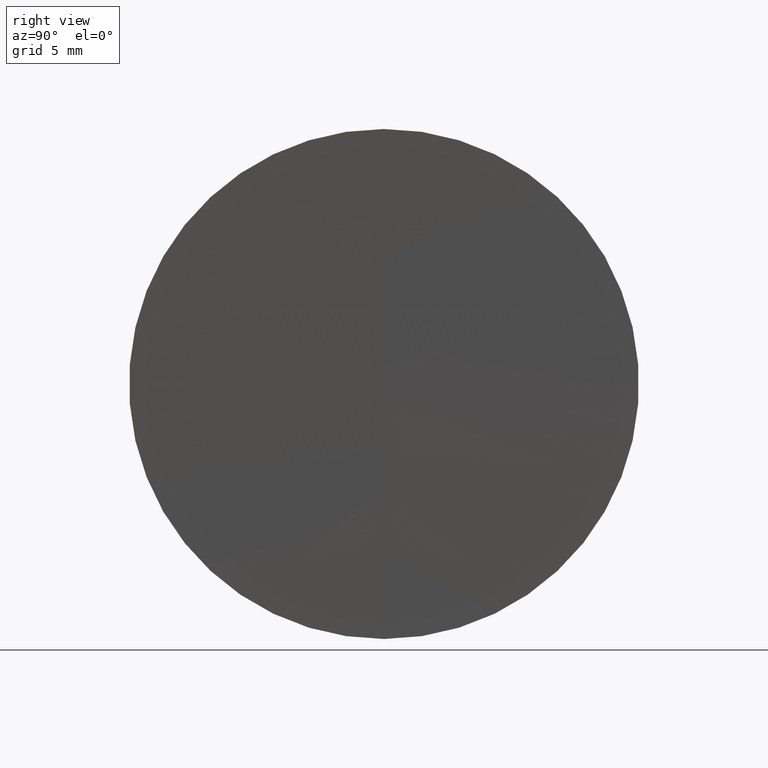
[diagram: clean part render]
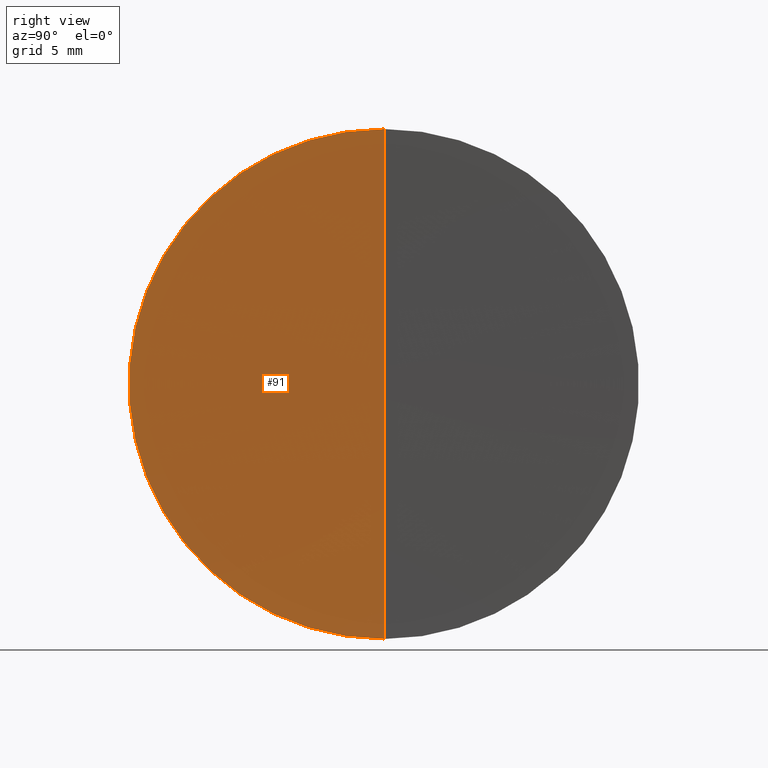
[diagram: same view with one face highlighted and labeled with its STEP entity id]
A machine part, right view. The second image highlights one B-rep face of the part: STEP entity #91.
In plain terms, the highlighted spherical surface has radius 1000 mm.
Its self-contained STEP definition (entity closure, byte-faithful):
#1 = DIRECTION ( 'NONE',  ( 0.0000000000000000000, 0.0000000000000000000, 1.000000000000000000 ) ) ;
#12 = EDGE_LOOP ( 'NONE', ( #44, #53, #117 ) ) ;
#18 = AXIS2_PLACEMENT_3D ( 'NONE', #123, #42, #110 ) ;
#20 = CARTESIAN_POINT ( 'NONE',  ( 6.350648252070323400, 1.555301434917393800E-015, -12.70000000000208500 ) ) ;
#25 = EDGE_CURVE ( 'NONE', #164, #65, #90, .T. ) ;
#30 = CARTESIAN_POINT ( 'NONE',  ( 6.269999999999997800, 0.0000000000000000000, 6.123233995736766200E-014 ) ) ;
#33 = DIRECTION ( 'NONE',  ( 0.0000000000000000000, 0.0000000000000000000, -1.000000000000000000 ) ) ;
#38 = DIRECTION ( 'NONE',  ( 0.0000000000000000000, 0.0000000000000000000, 1.000000000000000000 ) ) ;
#42 = DIRECTION ( 'NONE',  ( -0.0000000000000000000, 1.000000000000000000, 1.224646799147353200E-016 ) ) ;
#44 = ORIENTED_EDGE ( 'NONE', *, *, #161, .F. ) ;
#45 = CARTESIAN_POINT ( 'NONE',  ( 6.350648252070323400, 0.0000000000000000000, 12.70000000000208500 ) ) ;
#52 = CARTESIAN_POINT ( 'NONE',  ( 6.350648252070323400, 0.0000000000000000000, 0.0000000000000000000 ) ) ;
#53 = ORIENTED_EDGE ( 'NONE', *, *, #25, .T. ) ;
#54 = EDGE_CURVE ( 'NONE', #87, #65, #159, .T. ) ;
#59 = DIRECTION ( 'NONE',  ( 0.0000000000000000000, -1.000000000000000000, 0.0000000000000000000 ) ) ;
#63 = AXIS2_PLACEMENT_3D ( 'NONE', #124, #59, #33 ) ;
#65 = VERTEX_POINT ( 'NONE', #30 ) ;
#87 = VERTEX_POINT ( 'NONE', #45 ) ;
#90 = CIRCLE ( 'NONE', #18, 1000.000000000000000 ) ;
#91 = ADVANCED_FACE ( 'NONE', ( #128 ), #125, .F. ) ;
#94 = AXIS2_PLACEMENT_3D ( 'NONE', #52, #115, #38 ) ;
#110 = DIRECTION ( 'NONE',  ( 0.0000000000000000000, -1.224646799147353200E-016, 1.000000000000000000 ) ) ;
#113 = CIRCLE ( 'NONE', #94, 12.70000000000056200 ) ;
#115 = DIRECTION ( 'NONE',  ( -1.000000000000000000, -0.0000000000000000000, -0.0000000000000000000 ) ) ;
#117 = ORIENTED_EDGE ( 'NONE', *, *, #54, .F. ) ;
#123 = CARTESIAN_POINT ( 'NONE',  ( 1006.270000000000000, 0.0000000000000000000, 0.0000000000000000000 ) ) ;
#124 = CARTESIAN_POINT ( 'NONE',  ( 1006.270000000000000, 0.0000000000000000000, 0.0000000000000000000 ) ) ;
#125 = SPHERICAL_SURFACE ( 'NONE', #131, 1000.000000000000000 ) ;
#128 = FACE_OUTER_BOUND ( 'NONE', #12, .T. ) ;
#131 = AXIS2_PLACEMENT_3D ( 'NONE', #134, #139, #1 ) ;
#134 = CARTESIAN_POINT ( 'NONE',  ( 1006.270000000000000, 0.0000000000000000000, 0.0000000000000000000 ) ) ;
#139 = DIRECTION ( 'NONE',  ( 0.0000000000000000000, 1.000000000000000000, 0.0000000000000000000 ) ) ;
#159 = CIRCLE ( 'NONE', #63, 1000.000000000000000 ) ;
#161 = EDGE_CURVE ( 'NONE', #164, #87, #113, .T. ) ;
#164 = VERTEX_POINT ( 'NONE', #20 ) ;